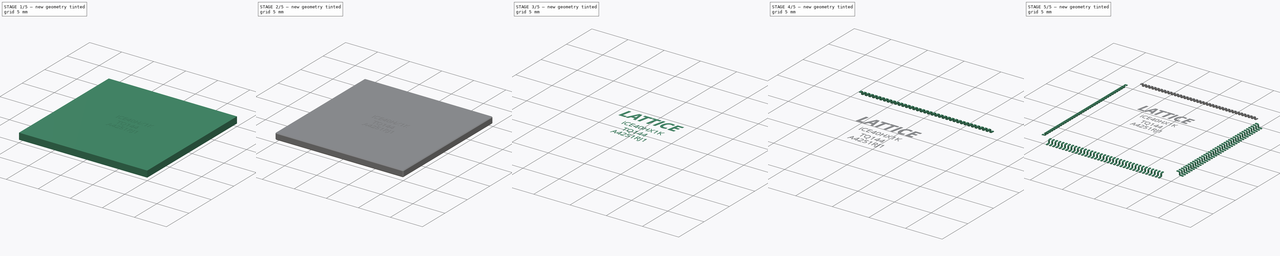
[diagram: build sequence overview — one tinted view per stage of 5, left to right]
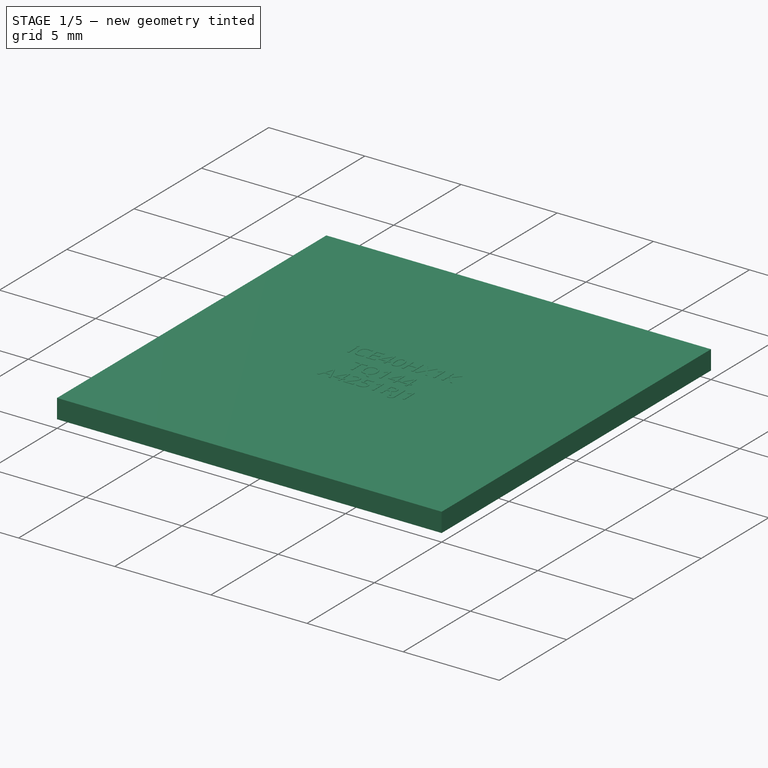
[diagram: stage 1 of 5 — iso view after this stage's code; geometry added in this stage tinted green]
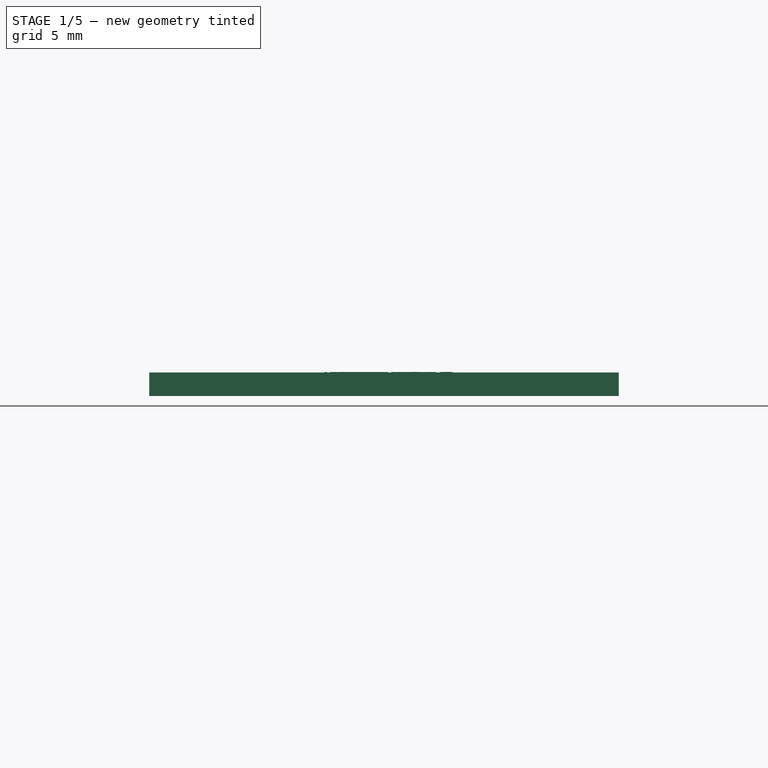
[diagram: stage 1 of 5 — front view after this stage's code; geometry added in this stage tinted green]
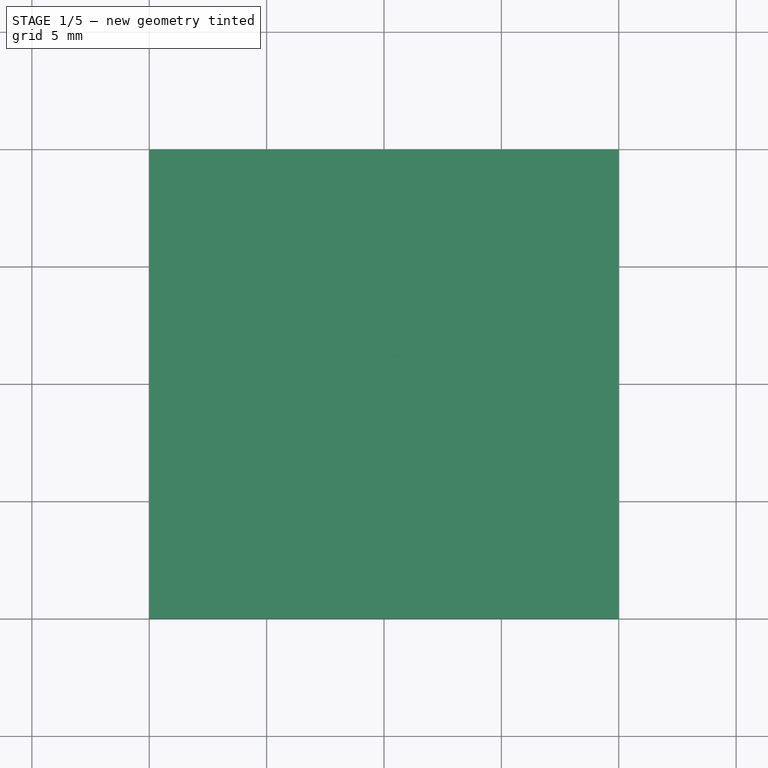
[diagram: stage 1 of 5 — top view after this stage's code; geometry added in this stage tinted green]
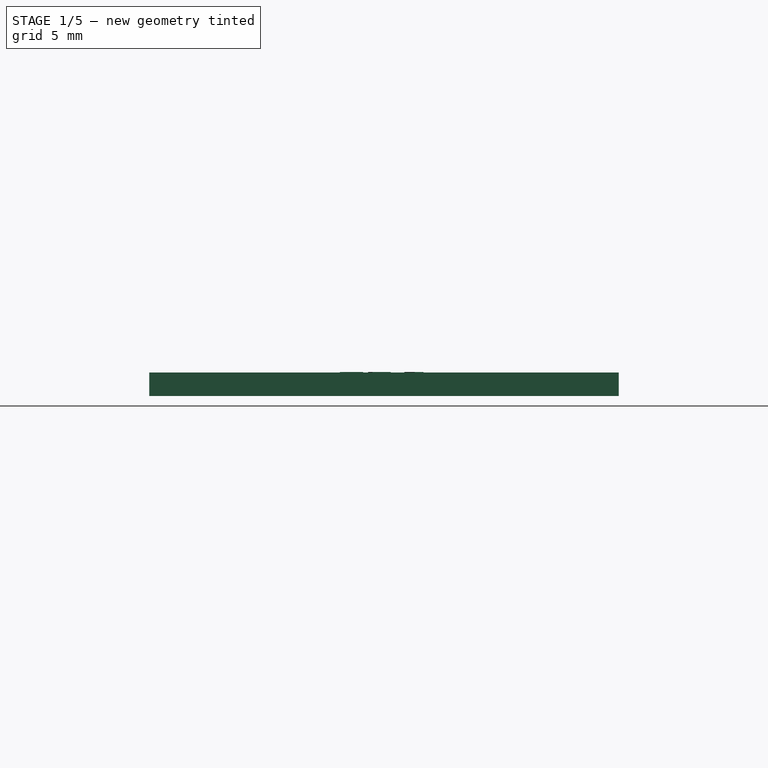
[diagram: stage 1 of 5 — right view after this stage's code; geometry added in this stage tinted green]
FCSTD DOCUMENT  (FreeCAD 0.16R6703 (Git))
Label: TQFP-144-IPC-MD
License: All rights reserved
LicenseURL: http://en.wikipedia.org/wiki/All_rights_reserved
objects: Part::FeaturePython×6, Part::Part2DObjectPython×4, Part::Extrusion×4, Sketcher::SketchObject×3, PartDesign::Pad×2, Part::Mirroring×2, Part::MultiFuse×2, PartDesign::Pocket×1, Part::Fillet×1, Part::Chamfer×1, App::DocumentObjectGroup×1
note: 29 computed .brp shape members not serialized (recipe doc carries the construction recipe); baked Part::Feature solids carry a one-line shape summary decoded from their .brp

FEATURE [Sketcher::SketchObject] Sketch  label="body-sketch"
  Placement = pos=(1.74852e-06,4.1e-11,0.1) rot=(0,0,1;0rad)
  sketch-geometry (4):
    g0: LineSegment StartX=-10 StartY=10 StartZ=0 EndX=10 EndY=10 EndZ=0
    g1: LineSegment StartX=10 StartY=10 StartZ=0 EndX=10 EndY=-10 EndZ=0
    g2: LineSegment StartX=10 StartY=-10 StartZ=0 EndX=-10 EndY=-10 EndZ=0
    g3: LineSegment StartX=-10 StartY=-10 StartZ=0 EndX=-10 EndY=10 EndZ=0
  constraints (11):
    c: Coincident(g0,g1)
    c: Coincident(g1,g2)
    c: Coincident(g2,g3)
    c: Coincident(g3,g0)
    c: Horizontal(g0)
    c: Horizontal(g2)
    c: Vertical(g1)
    c: Vertical(g3)
    c: Symmetric(g0,g1,g-1)
    c: DistanceX(g0,g0) = 20
    c: Equal(g0,g1)
FEATURE [PartDesign::Pad] Pad  label="body-1"
  Length = 1
  Length2 = 100
  Placement = pos=(1.74852e-06,4.1e-11,0.1) rot=(0,0,1;0rad)
  Sketch = -> Sketch
  Type = 0
FEATURE [Part::Part2DObjectPython] ShapeString001  label="text-line2-string"  # Draft 2D object (typed FeaturePython)
  FontFile = <userpath>/develop/icezum/src-kicad/packages3d/develop/Open_Sans/OpenSans-Regular.ttf
  Placement = pos=(-2.61825,0.868303,1.1) rot=(0,0,1;0rad)
  Size = 1
  String = iCE40HX1K
  Tracking = 0
FEATURE [Part::Extrusion] Extrude001  label="text-line2"
  Base = -> ShapeString001
  Dir = (0,0,0.02)
  Solid = true
FEATURE [Part::Part2DObjectPython] ShapeString002  label="text-line3-string"  # Draft 2D object (typed FeaturePython)
  FontFile = <userpath>/develop/icezum/src-kicad/packages3d/develop/Open_Sans/OpenSans-Regular.ttf
  Placement = pos=(-1.65257,-0.492431,1.1) rot=(0,0,1;0rad)
  Size = 1
  String = TQ144
  Tracking = 0
FEATURE [Part::Extrusion] Extrude002  label="text-line3"
  Base = -> ShapeString002
  Dir = (0,0,0.02)
  Solid = true
FEATURE [Part::Part2DObjectPython] ShapeString003  label="text-line4-string"  # Draft 2D object (typed FeaturePython)
  FontFile = <userpath>/develop/icezum/src-kicad/packages3d/develop/Open_Sans/OpenSans-Regular.ttf
  Placement = pos=(-2.3074,-1.67113,1.1) rot=(0,0,1;0rad)
  Size = 1
  String = A4251RJ1
  Tracking = 0
FEATURE [Part::Extrusion] Extrude003  label="text-line4"
  Base = -> ShapeString003
  Dir = (0,0,0.02)
  Solid = true
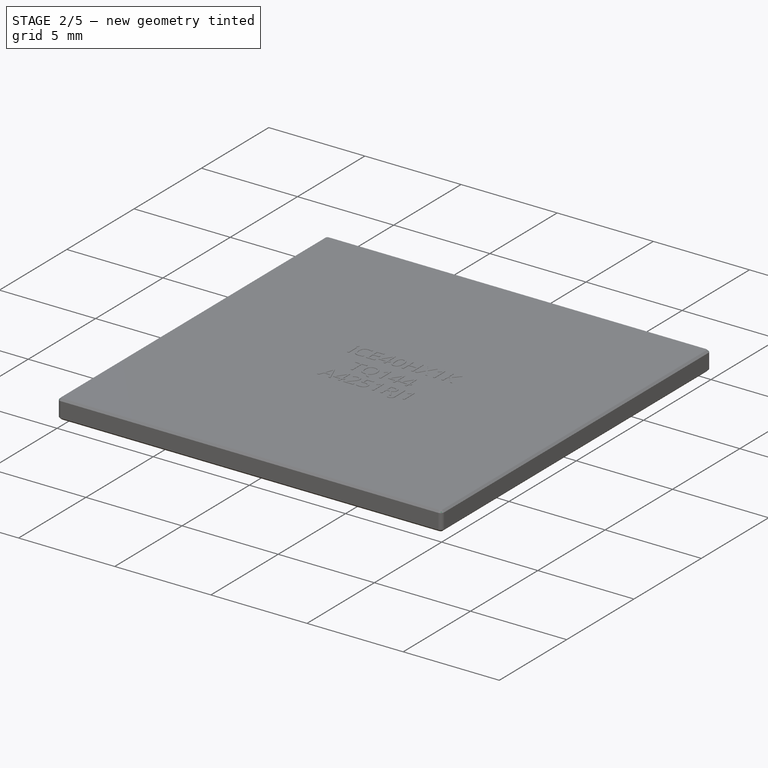
[diagram: stage 2 of 5 — iso view after this stage's code; geometry added in this stage tinted green]
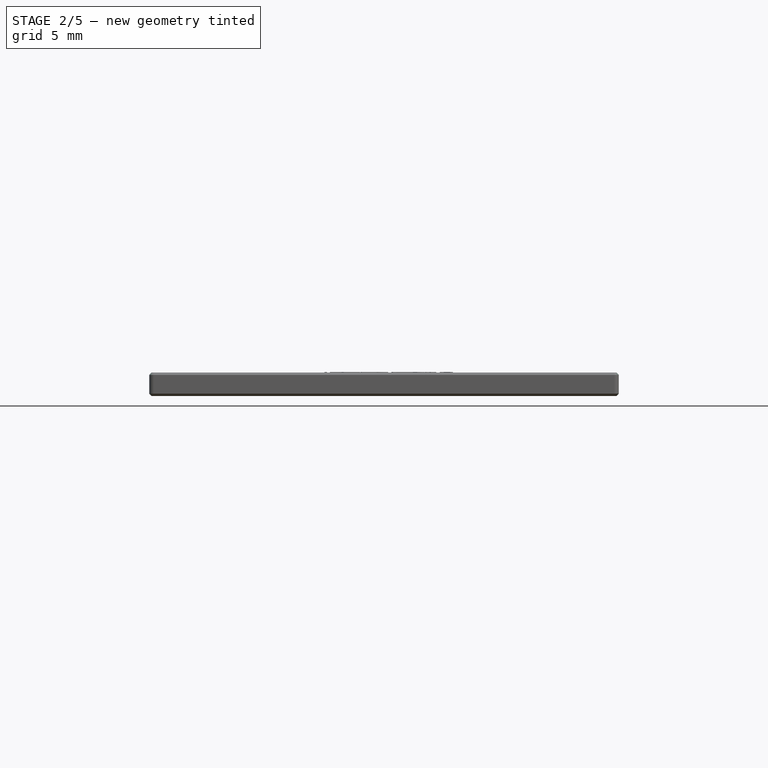
[diagram: stage 2 of 5 — front view after this stage's code; geometry added in this stage tinted green]
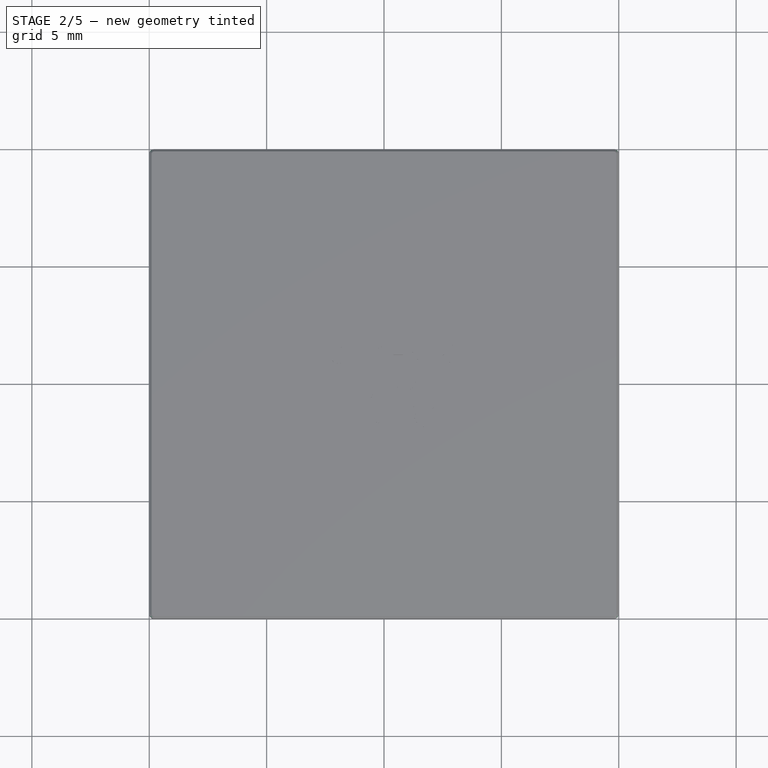
[diagram: stage 2 of 5 — top view after this stage's code; geometry added in this stage tinted green]
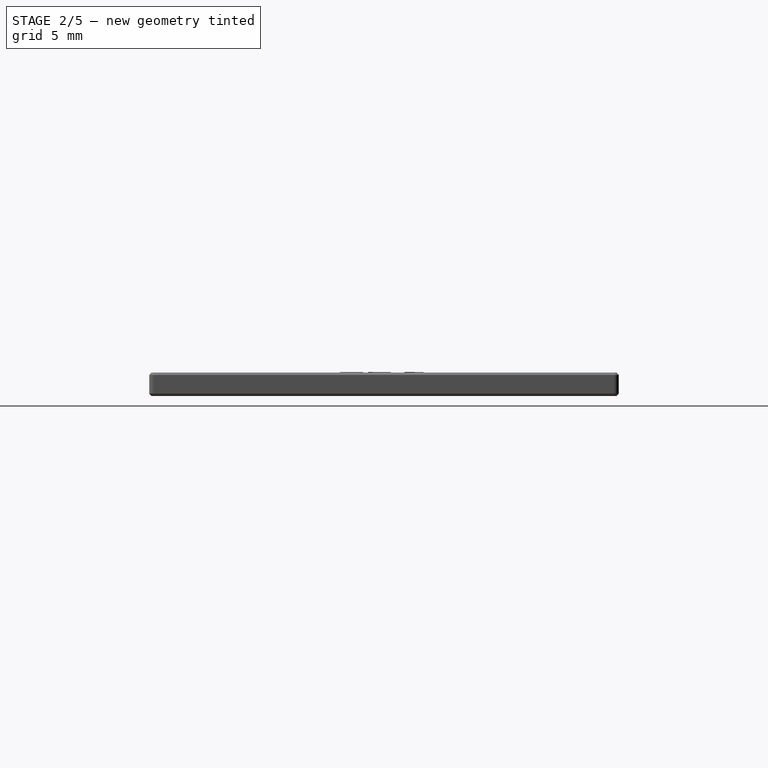
[diagram: stage 2 of 5 — right view after this stage's code; geometry added in this stage tinted green]
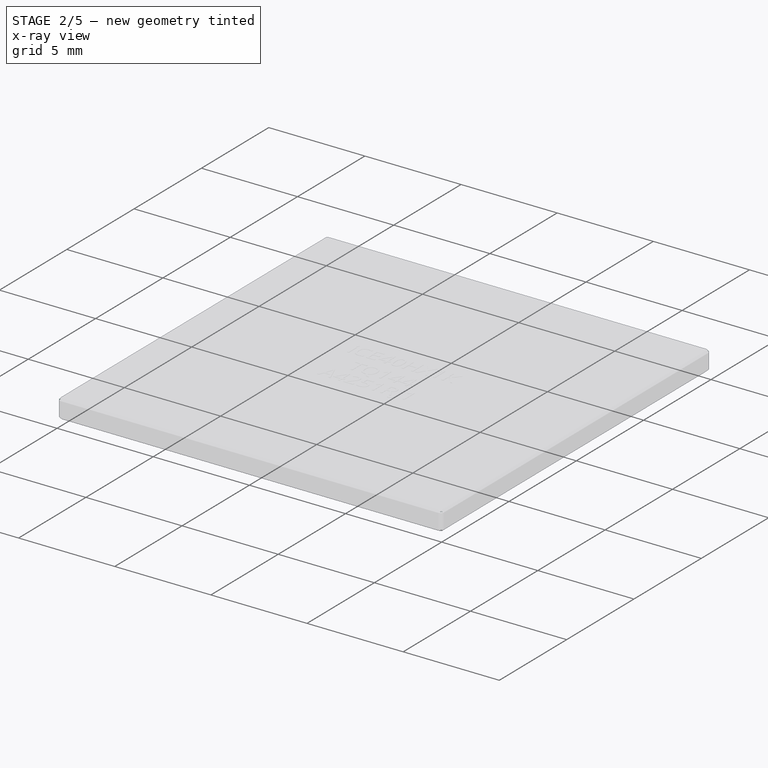
[diagram: stage 2 of 5 — x-ray composite at the iso view; earlier geometry ghosted, this stage's added geometry solid]
FEATURE [Sketcher::SketchObject] Sketch001
  Placement = pos=(1.74852e-06,4.1e-11,1.1) rot=(0,0,1;0rad)
  Support = -> Pad [Face6]
  sketch-geometry (1):
    g0: Circle CenterX=-8.90656 CenterY=8.79873 CenterZ=0 NormalX=0 NormalY=0 NormalZ=1 Radius=0.2
  constraints (1):
    c: Radius(g0) = 0.2
FEATURE [PartDesign::Pocket] Pocket  label="body-2-mark"
  Length = 5e-05
  Placement = pos=(1.74852e-06,4.1e-11,0.1) rot=(0,0,1;0rad)
  Sketch = -> Sketch001
  Type = 0
FEATURE [Part::Fillet] Fillet  label="body-3-fillet"
  Base = -> Pocket
  Edges = 4 edges r=0.2: [Edge1,Edge2,Edge5,Edge8]
FEATURE [Part::Chamfer] Chamfer  label="body-4-chamfer"
  Base = -> Fillet
  Edges = 2 edges r=0.1: [Edge11,Edge20]
FEATURE [Part::FeaturePython] Clone  label="body"  # Draft clone (typed FeaturePython)
  Objects = -> [Chamfer]
  Scale = (1,1,1)
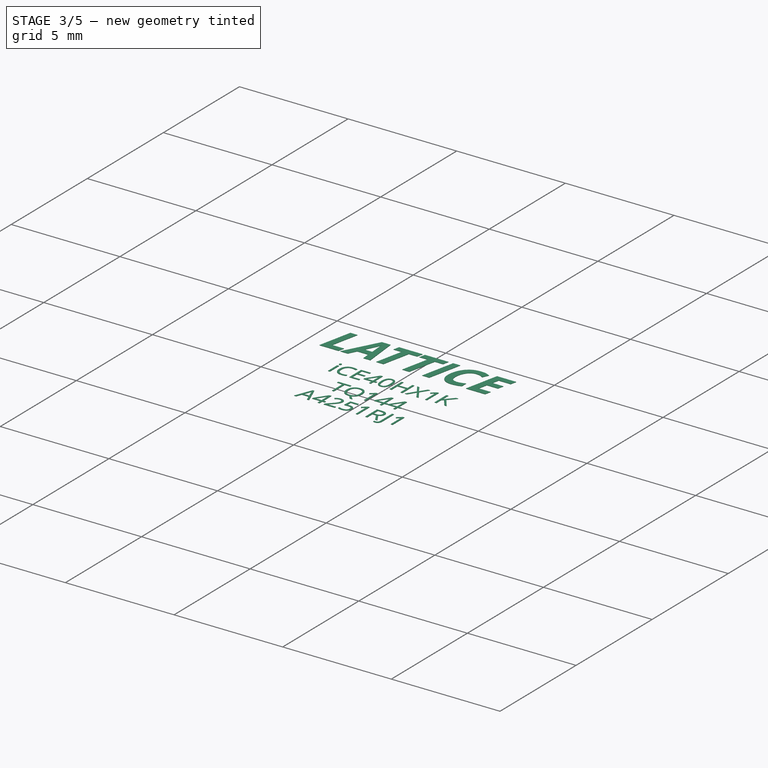
[diagram: stage 3 of 5 — iso view after this stage's code; geometry added in this stage tinted green]
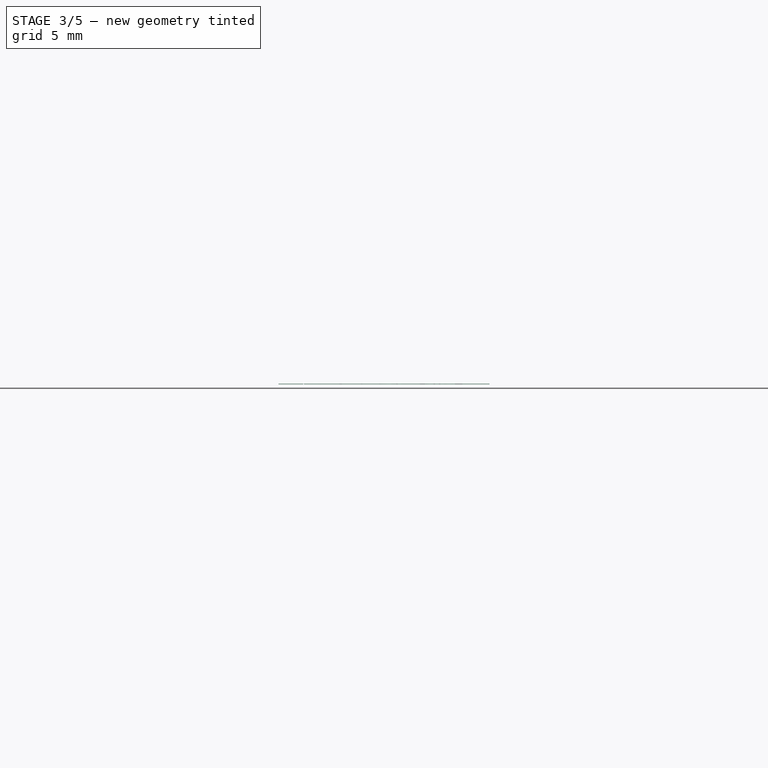
[diagram: stage 3 of 5 — front view after this stage's code; geometry added in this stage tinted green]
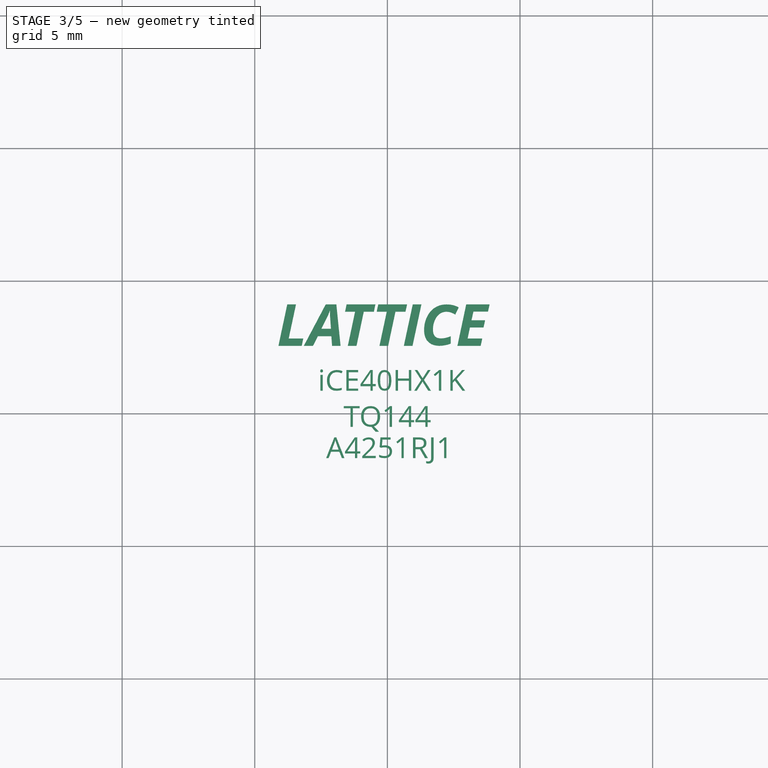
[diagram: stage 3 of 5 — top view after this stage's code; geometry added in this stage tinted green]
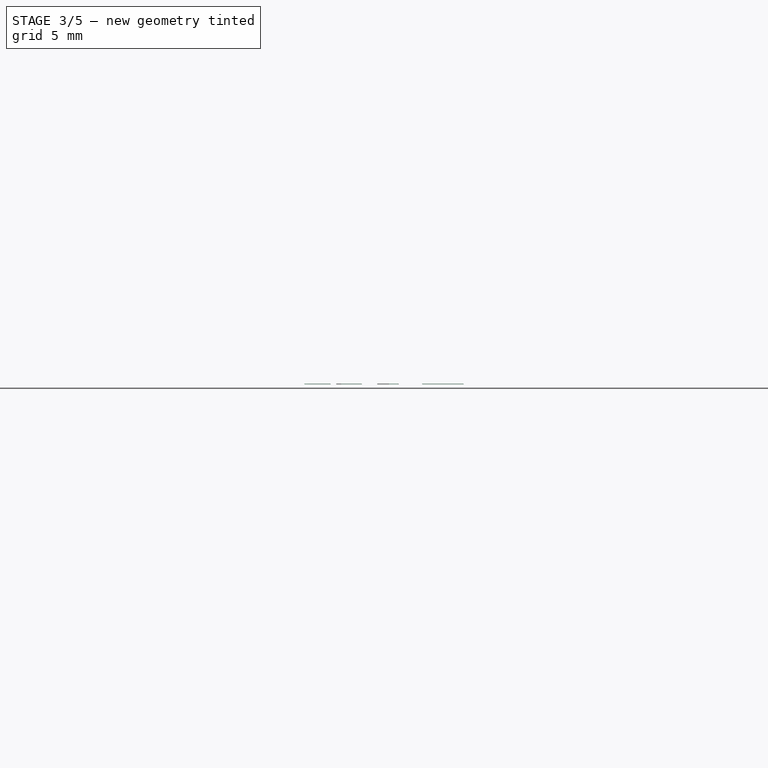
[diagram: stage 3 of 5 — right view after this stage's code; geometry added in this stage tinted green]
FEATURE [Part::Part2DObjectPython] ShapeString  label="text-lattice-string"  # Draft 2D object (typed FeaturePython)
  FontFile = <userpath>/develop/icezum/src-kicad/packages3d/develop/Open_Sans/OpenSans-BoldItalic.ttf
  Placement = pos=(-4.16322,2.56196,1.1) rot=(0,0,1;0rad)
  Size = 2
  String = LATTICE
  Support = -> Clone
  Tracking = 0
FEATURE [Part::Extrusion] Extrude  label="text-lattice"
  Base = -> ShapeString
  Dir = (0,0,0.02)
  Solid = true
FEATURE [Part::MultiFuse] Fusion001  label="text-src"
  Shapes = -> [Extrude,Extrude001,Extrude002,Extrude003]
FEATURE [App::DocumentObjectGroup] Group  label="src"
  Group = -> [Pad,Chamfer,Pad001,Clone001,Fusion,Fusion001]
FEATURE [Part::FeaturePython] Clone003  label="text"  # Draft clone (typed FeaturePython)
  Objects = -> [Fusion001]
  Scale = (1,1,1)
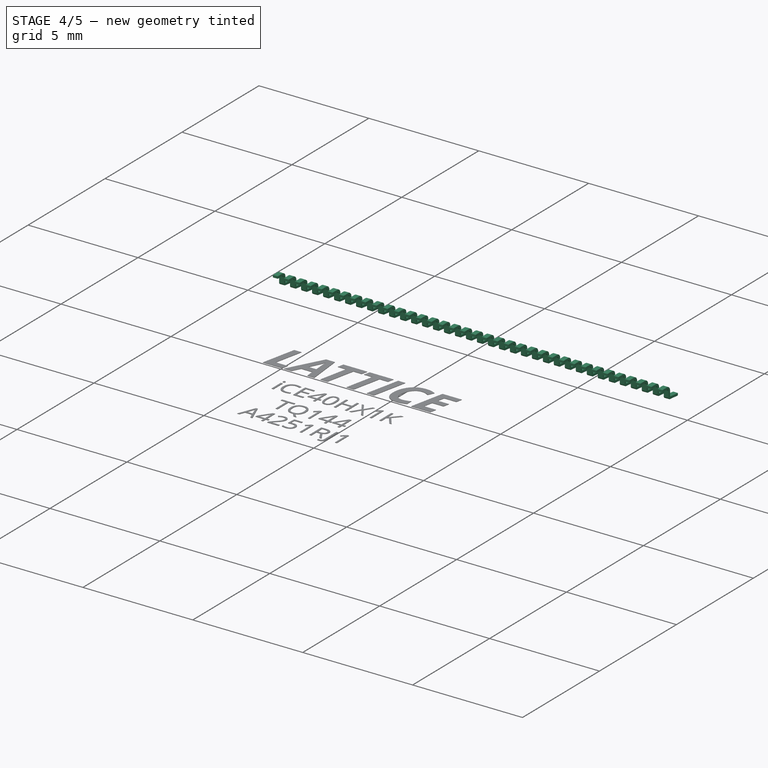
[diagram: stage 4 of 5 — iso view after this stage's code; geometry added in this stage tinted green]
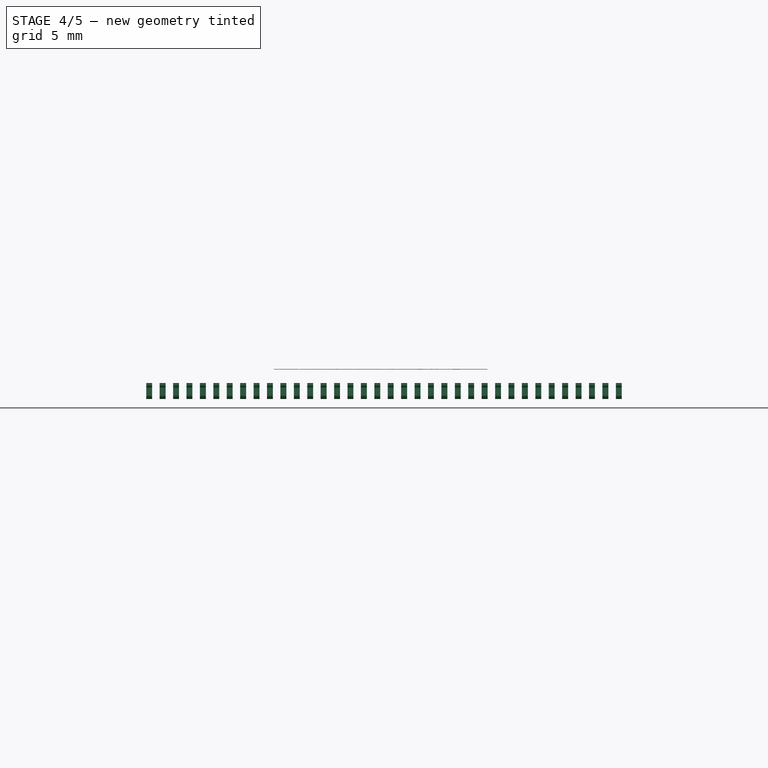
[diagram: stage 4 of 5 — front view after this stage's code; geometry added in this stage tinted green]
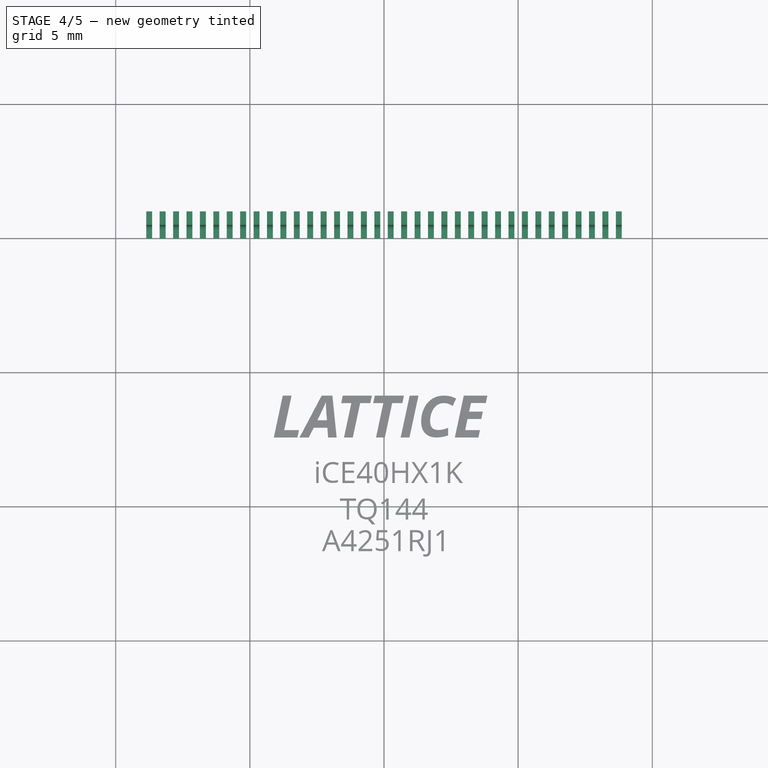
[diagram: stage 4 of 5 — top view after this stage's code; geometry added in this stage tinted green]
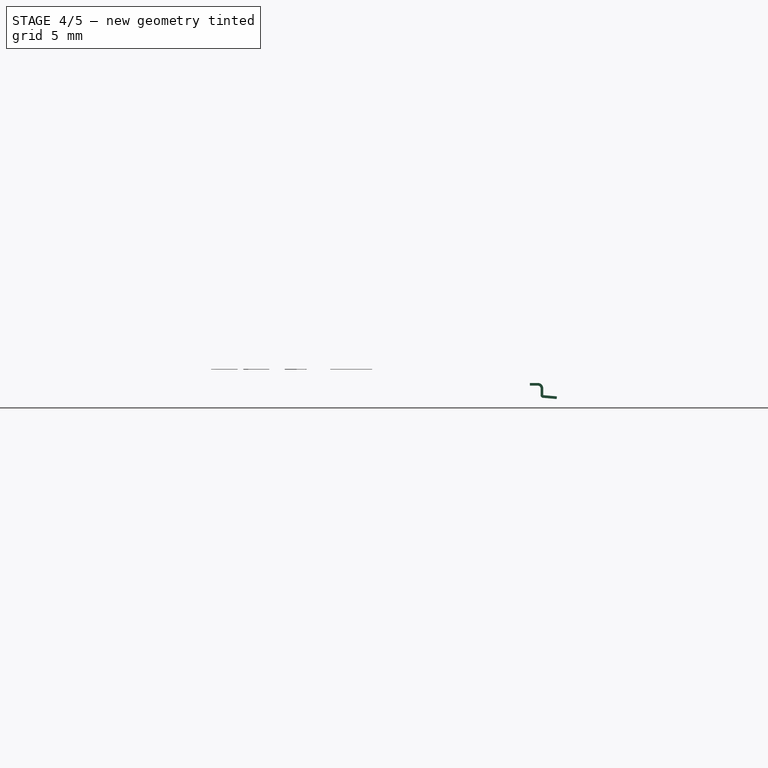
[diagram: stage 4 of 5 — right view after this stage's code; geometry added in this stage tinted green]
FEATURE [Sketcher::SketchObject] Sketch002
  Placement = pos=(-11,-8.64,0) rot=(1,0,0;1.5708rad)
  sketch-geometry (15):
    g0: LineSegment StartX=0.508059 StartY=0.0444494 StartZ=0 EndX=0 EndY=0 EndZ=0
    g1: LineSegment StartX=0 StartY=0 StartZ=0 EndX=-0.00871557 EndY=0.0996195 EndZ=0
    g2: LineSegment StartX=-0.00871557 StartY=0.0996195 StartZ=0 EndX=0.499344 EndY=0.144069 EndZ=0
    g3: LineSegment StartX=0.499344 StartY=0.144069 StartZ=0 EndX=0.499344 EndY=0.399069 EndZ=0
    g4: ArcOfCircle CenterX=0.499344 CenterY=0.144069 CenterZ=0 NormalX=0 NormalY=0 NormalZ=1 Radius=0.1 StartAngle=4.79966 EndAngle=6.28319
    g5: LineSegment [constr] StartX=0.499344 StartY=0.144069 StartZ=0 EndX=0.599344 EndY=0.144069 EndZ=0
    g6: LineSegment [constr] StartX=0.499344 StartY=0.399069 StartZ=0 EndX=0.599344 EndY=0.399069 EndZ=0
    g7: LineSegment StartX=0.599344 StartY=0.399069 StartZ=0 EndX=0.599344 EndY=0.144069 EndZ=0
    g8: ArcOfCircle CenterX=0.699344 CenterY=0.399069 CenterZ=0 NormalX=0 NormalY=0 NormalZ=1 Radius=0.1 StartAngle=1.5708 EndAngle=3.14159
    g9: LineSegment [constr] StartX=0.699344 StartY=0.499069 StartZ=0 EndX=0.699344 EndY=0.399069 EndZ=0
    g10: ArcOfCircle CenterX=0.699344 CenterY=0.399069 CenterZ=0 NormalX=0 NormalY=0 NormalZ=1 Radius=0.2 StartAngle=1.5708 EndAngle=3.14159
    g11: LineSegment [constr] StartX=0.699344 StartY=0.599069 StartZ=0 EndX=0.699344 EndY=0.499069 EndZ=0
    g12: LineSegment StartX=0.699344 StartY=0.599069 StartZ=0 EndX=0.999344 EndY=0.599069 EndZ=0
    g13: LineSegment StartX=0.999344 StartY=0.599069 StartZ=0 EndX=0.999344 EndY=0.499069 EndZ=0
    g14: LineSegment StartX=0.999344 StartY=0.499069 StartZ=0 EndX=0.699344 EndY=0.499069 EndZ=0
  constraints (42):
    c: PointOnObject(g0,g-1)
    c: Coincident(g0,g1)
    c: Coincident(g1,g2)
    c: Coincident(g2,g3)
    c: Vertical(g3)
    c: Angle(g0,g-1) = 3.05433
    c: Distance(g0) = 0.51
    c: Perpendicular(g0,g1)
    c: Distance(g1) = 0.1
    c: Parallel(g2,g0)
    c: Equal(g2,g0)
    c: Coincident(g4,g2)
    c: Coincident(g4,g0)
    c: Coincident(g5,g2)
    c: Coincident(g5,g4)
    c: Horizontal(g5)
    c: Horizontal(g6)
    c: Coincident(g6,g3)
    c: Vertical(g7)
    c: Coincident(g7,g4)
    c: Coincident(g7,g6)
    c: Coincident(g8,g6)
    c: Coincident(g9,g8)
    c: Coincident(g9,g8)
    c: Vertical(g9)
    c: PointOnObject(g8,g6)
    c: Coincident(g10,g8)
    c: Coincident(g10,g3)
    c: PointOnObject(g10,g9)
    c: Vertical(g11)
    c: Coincident(g11,g10)
    c: Coincident(g11,g8)
    c: Radius(g8) = 0.1
    c: DistanceY(g7,g7) = 0.255
    c: Tangent(g10,g12) = 1.5708
    c: Coincident(g12,g13)
    c: Vertical(g13)
    c: Coincident(g13,g14)
    c: Coincident(g14,g8)
    c: Horizontal(g14)
    c: DistanceX(g12,g12) = 0.3
    c: Coincident(g0,g-1)
FEATURE [PartDesign::Pad] Pad001  label="pad-1-y"
  Length = 0.22
  Length2 = 100
  Placement = pos=(-11,-8.64,0) rot=(1,0,0;1.5708rad)
  Sketch = -> Sketch002
  Type = 0
FEATURE [Part::FeaturePython] Clone001  label="pad-1-x"  # Draft clone (typed FeaturePython)
  Objects = -> [Pad001]
  Placement = pos=(-8.86,-11,0) rot=(0.57735,0.57735,0.57735;2.0944rad)
  Scale = (1,1,1)
FEATURE [Part::FeaturePython] Array001  label="pins-bottom"  # Draft array (typed FeaturePython)
  Angle = 360
  ArrayType = 0
  Axis = (0,0,1)
  Base = -> Clone001
  Center = (0,0,0)
  Fuse = false
  IntervalAxis = (0,0,0)
  IntervalX = (0.5,0,0)
  IntervalY = (0,1,0)
  IntervalZ = (0,0,0)
  NumberPolar = 1
  NumberX = 36
  NumberY = 1
  NumberZ = 1
FEATURE [Part::Mirroring] Part__Mirroring001  label="pins-bottom (Mirror #2)"
  Base = (0,0,0)
  Normal = (0,1,0)
  Source = -> Array001
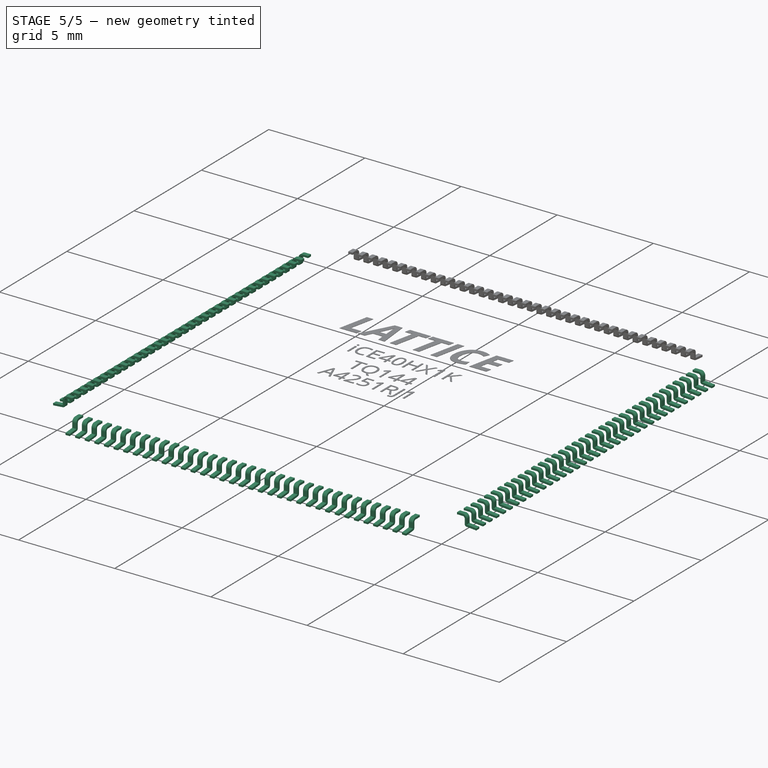
[diagram: stage 5 of 5 — iso view after this stage's code; geometry added in this stage tinted green]
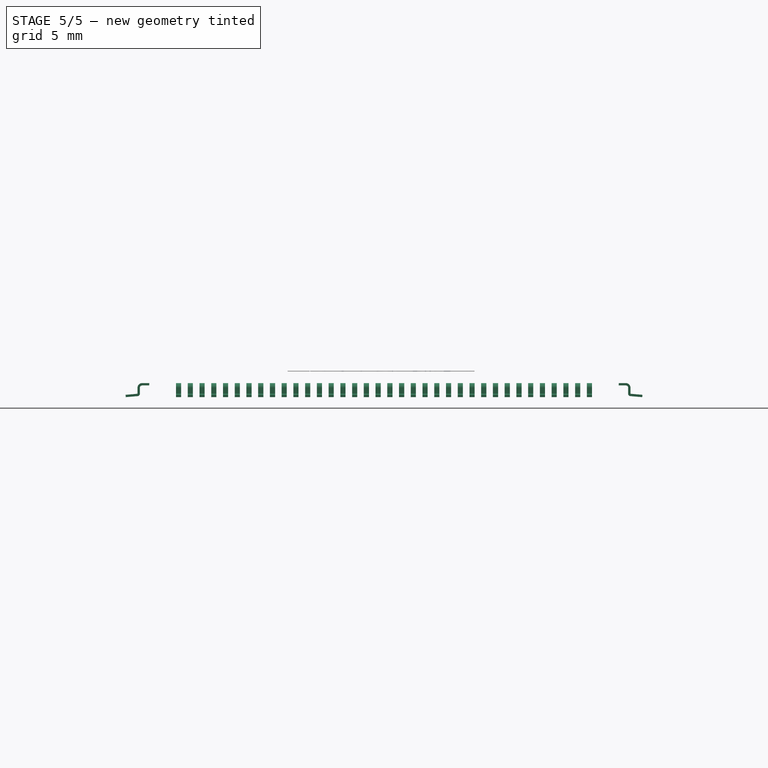
[diagram: stage 5 of 5 — front view after this stage's code; geometry added in this stage tinted green]
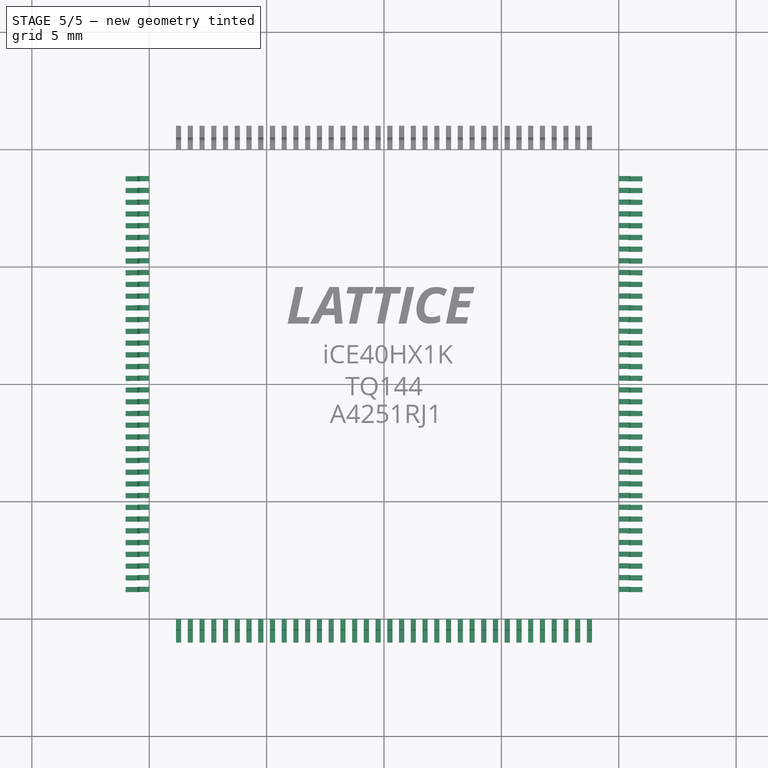
[diagram: stage 5 of 5 — top view after this stage's code; geometry added in this stage tinted green]
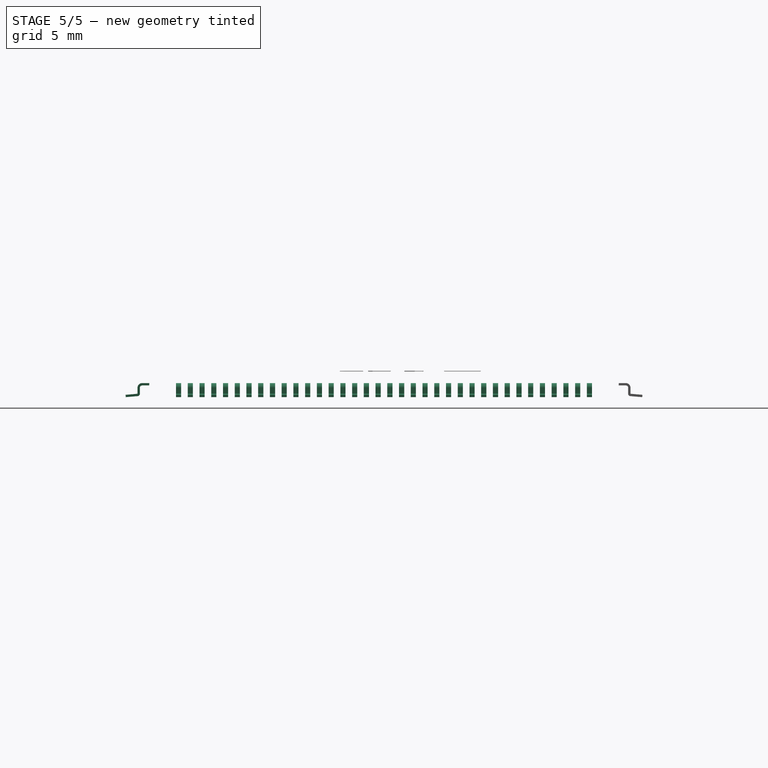
[diagram: stage 5 of 5 — right view after this stage's code; geometry added in this stage tinted green]
FEATURE [Part::FeaturePython] Array  label="pins-left"  # Draft array (typed FeaturePython)
  Angle = 360
  ArrayType = 0
  Axis = (0,0,1)
  Base = -> Pad001
  Center = (0,0,0)
  Fuse = false
  IntervalAxis = (0,0,0)
  IntervalX = (1,0,0)
  IntervalY = (0,0.5,0)
  IntervalZ = (0,0,0)
  NumberPolar = 1
  NumberX = 1
  NumberY = 36
  NumberZ = 1
FEATURE [Part::Mirroring] Part__Mirroring  label="pins-left (Mirror #1)"
  Base = (0,0,0)
  Normal = (1,0,0)
  Source = -> Array
FEATURE [Part::MultiFuse] Fusion  label="pads-src"
  Shapes = -> [Array,Part__Mirroring,Array001,Part__Mirroring001]
FEATURE [Part::FeaturePython] Clone002  label="pins"  # Draft clone (typed FeaturePython)
  Objects = -> [Fusion]
  Scale = (1,1,1)
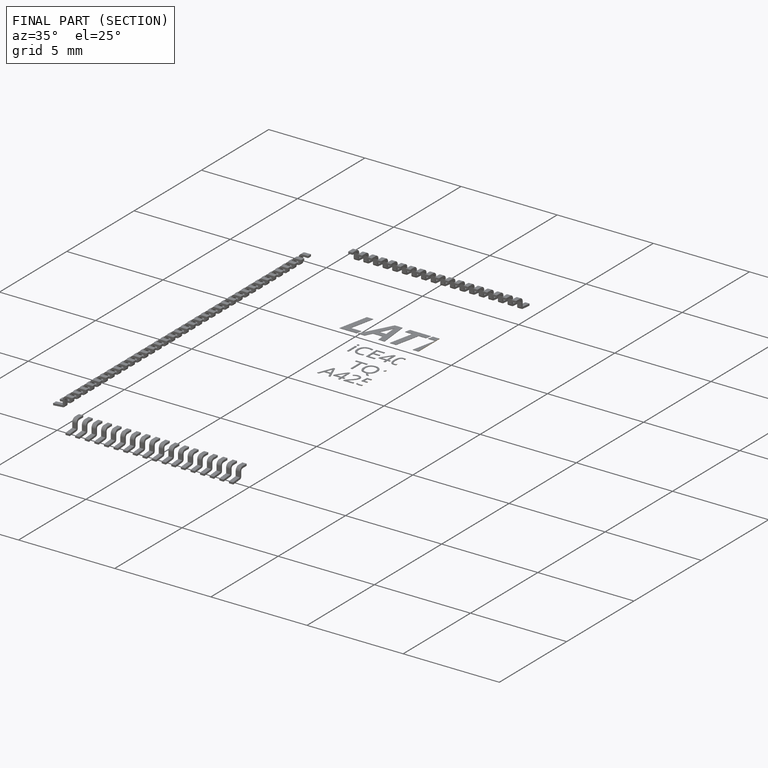
[diagram: finished part — half-section view (interior)]
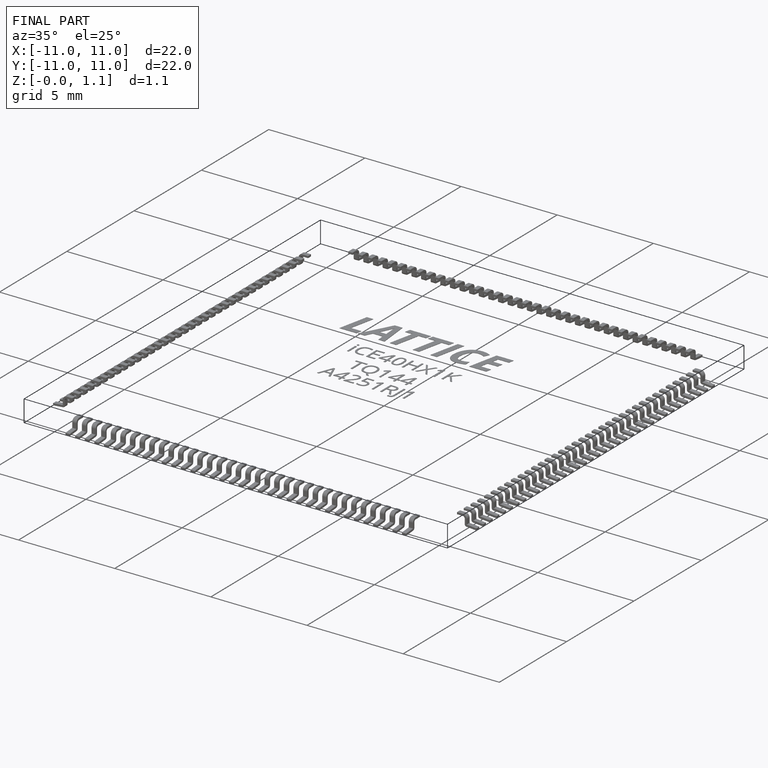
[diagram: finished part — iso view with bounding-box wireframe]
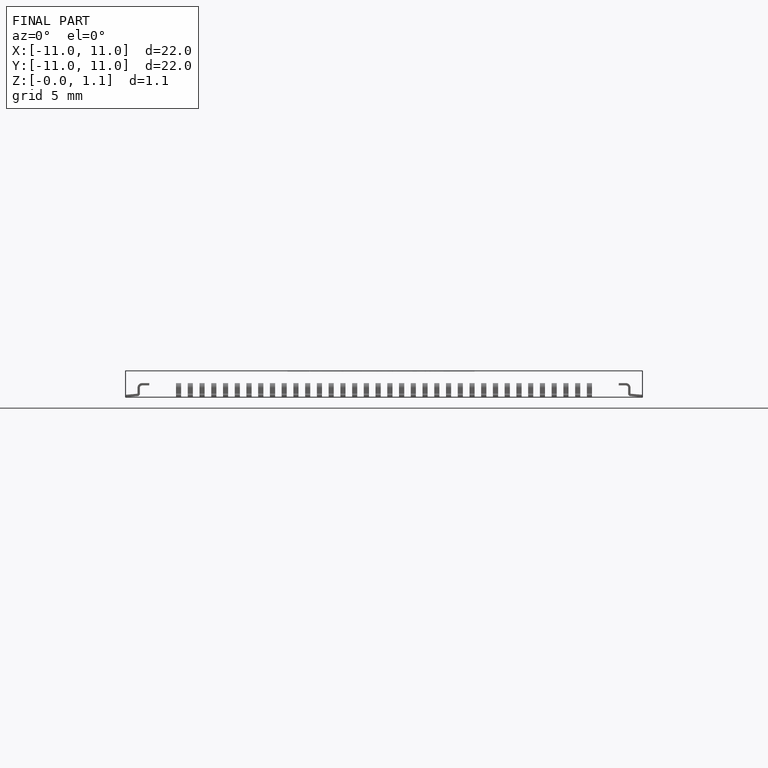
[diagram: finished part — front view with bounding-box wireframe]
